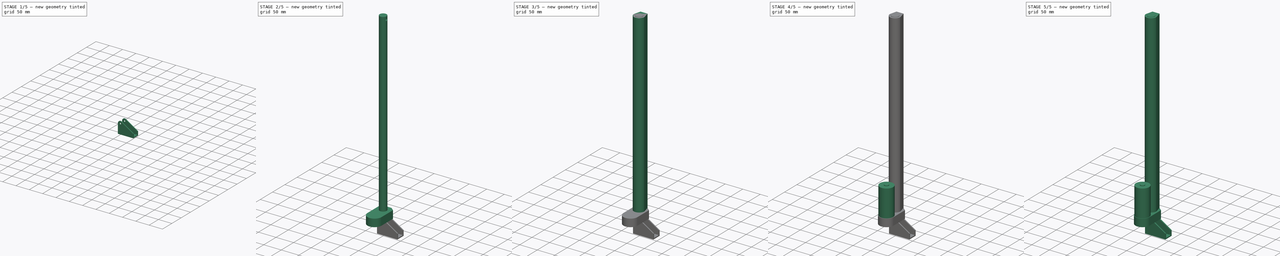
[diagram: build sequence overview — one tinted view per stage of 5, left to right]
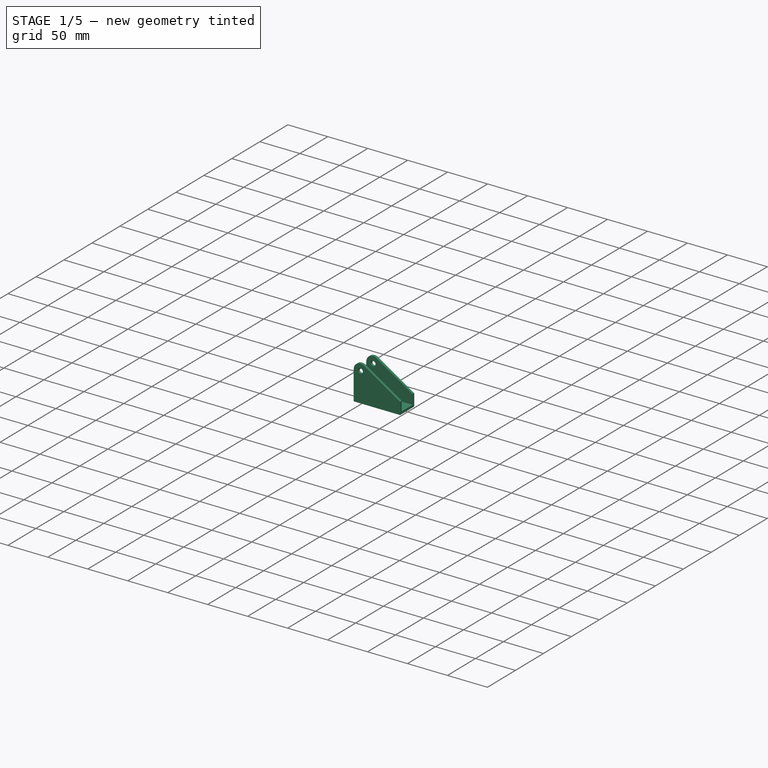
[diagram: stage 1 of 5 — iso view after this stage's code; geometry added in this stage tinted green]
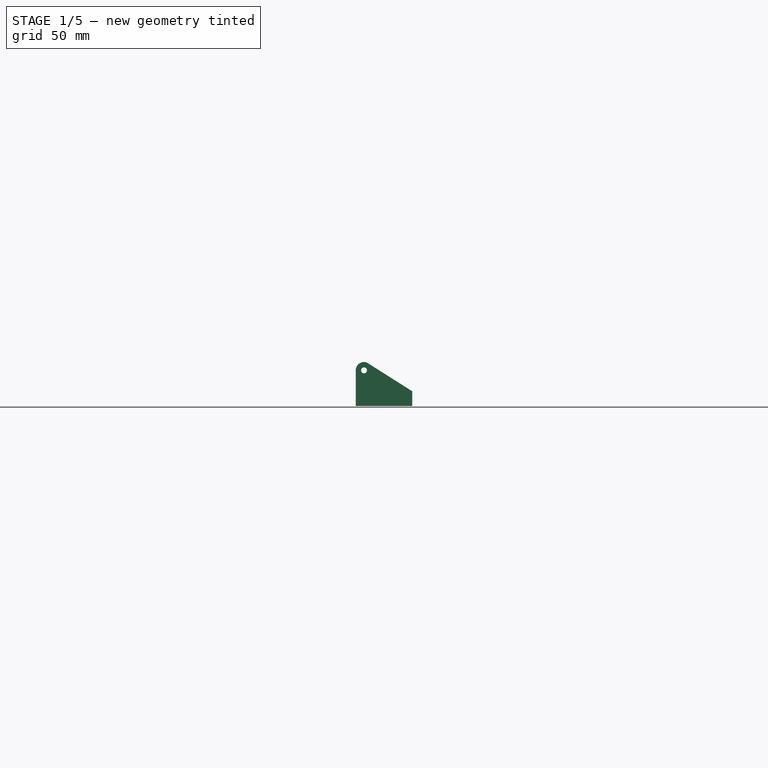
[diagram: stage 1 of 5 — front view after this stage's code; geometry added in this stage tinted green]
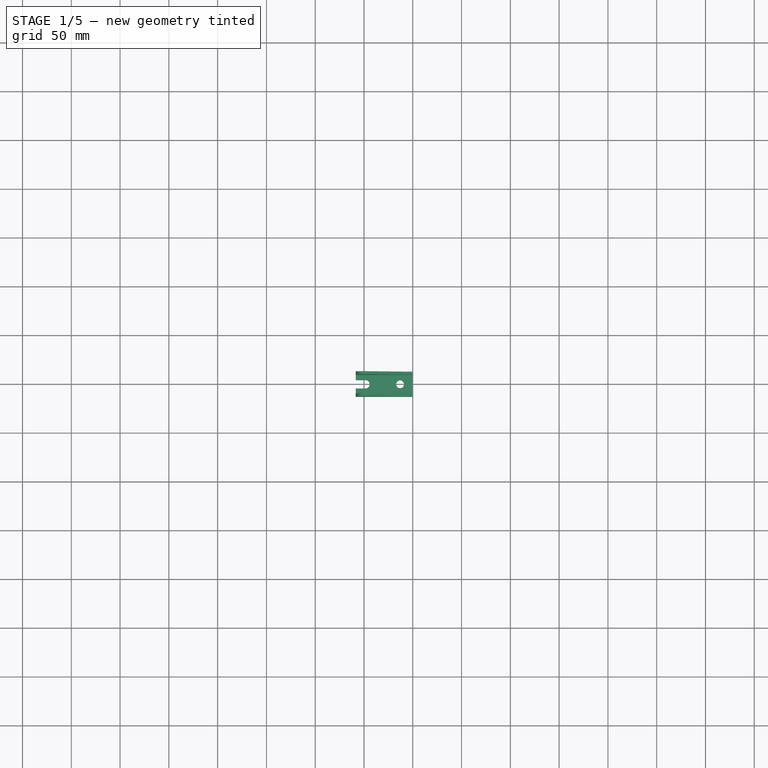
[diagram: stage 1 of 5 — top view after this stage's code; geometry added in this stage tinted green]
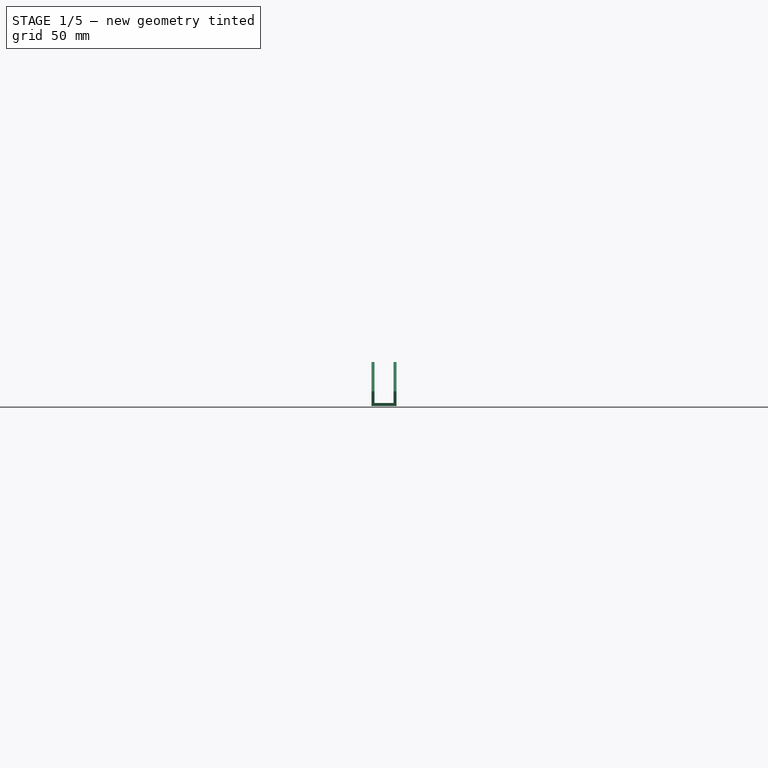
[diagram: stage 1 of 5 — right view after this stage's code; geometry added in this stage tinted green]
FCSTD DOCUMENT  (FreeCAD 0.19R18044 (Git))
Label: linear-actuator-400
License: Public Domain
LicenseURL: http://en.wikipedia.org/wiki/Public_domain
objects: Part::FeaturePython×21, App::FeaturePython×19, Sketcher::SketchObject×15, PartDesign::Pad×8, PartDesign::Pocket×6, PartDesign::Body×4, PartDesign::Hole×1
note: 66 computed .brp shape members not serialized (recipe doc carries the construction recipe); baked Part::Feature solids carry a one-line shape summary decoded from their .brp

FEATURE [PartDesign::Body] Body  label="actuator base"
  Group = -> [Sketch,Pad,Sketch001,Pad001,Sketch002,Hole,Sketch003,Pad002,Sketch004,Pocket,Sketch007,Pad004,Sketch008,Pad005]
  Origin = -> Origin
  SingleSolid = true
  Tip = -> Pad005
FEATURE [Sketcher::SketchObject] Sketch009
  MapMode = 5
  Placement = pos=(0,0,0) rot=(1,0,0;1.5708rad)
  Support = -> [XZ_Plane002]
  sketch-geometry (7):
    g0: LineSegment StartX=-8.5 StartY=1e-15 StartZ=0 EndX=-8.5 EndY=-36.5 EndZ=0
    g1: LineSegment StartX=-8.5 StartY=-36.5 StartZ=0 EndX=49.5 EndY=-36.5 EndZ=0
    g2: LineSegment StartX=49.5 StartY=-36.5 StartZ=0 EndX=49.5 EndY=-21.5 EndZ=0
    g3: LineSegment StartX=49.5 StartY=-21.5 StartZ=0 EndX=3.04099 EndY=7.9374 EndZ=0
    g4: ArcOfCircle CenterX=0 CenterY=0 CenterZ=0 NormalX=0 NormalY=0 NormalZ=1 AngleXU=0 Radius=8.5 StartAngle=1.20492 EndAngle=3.14159
    g5: Circle CenterX=0 CenterY=0 CenterZ=0 NormalX=0 NormalY=0 NormalZ=1 AngleXU=0 Radius=3
    g6: GeomPoint X=1.97567e-07 Y=8.5 Z=0
  constraints (19):
    c: Vertical(g0)
    c: Coincident(g0,g1)
    c: Horizontal(g1)
    c: Coincident(g1,g2)
    c: Vertical(g2)
    c: Coincident(g2,g3)
    c: Coincident(g4,g-1)
    c: Coincident(g4,g0)
    c: Coincident(g4,g3)
    c: Coincident(g5,g4)
    c: Distance(g1) = 58
    c: Distance(g0) = 36.5
    c: Distance(g2) = 15
    c: Diameter(g5) = 6
    c: DistanceX(g0,g4) = 8.5
    c: PointOnObject(g0,g-1)
    c: PointOnObject(g6,g4)
    c: DistanceY(g0,g6) = 45
    c: Distance(g3) = 55
FEATURE [PartDesign::Pad] Pad006
  ClaimChildren = false
  Length = 25.5
  Length2 = 100
  Midplane = true
  Placement = pos=(0,0,0) rot=(1,0,0;1.5708rad)
  Profile = -> Sketch009
  Type = 0
FEATURE [Sketcher::SketchObject] Sketch010
  ExternalGeometry = -> [Pad006]
  MapMode = 5
  Placement = pos=(-8.5,0,0) rot=(0.707107,0,-0.707107;3.14159rad)
  Support = -> [Pad006]
  sketch-geometry (4):
    g0: LineSegment StartX=-11.5 StartY=9.75 StartZ=0 EndX=33.5 EndY=9.75 EndZ=0
    g1: LineSegment StartX=33.5 StartY=9.75 StartZ=0 EndX=33.5 EndY=-9.75 EndZ=0
    g2: LineSegment StartX=33.5 StartY=-9.75 StartZ=0 EndX=-11.5 EndY=-9.75 EndZ=0
    g3: LineSegment StartX=-11.5 StartY=-9.75 StartZ=0 EndX=-11.5 EndY=9.75 EndZ=0
  constraints (11):
    c: Coincident(g0,g1)
    c: Coincident(g1,g2)
    c: Coincident(g2,g3)
    c: Coincident(g3,g0)
    c: Horizontal(g0)
    c: Horizontal(g2)
    c: Vertical(g3)
    c: Symmetric(g0,g1,g-1)
    c: DistanceX(g0,g-3) = 3
    c: DistanceY(g0,g-3) = 3
    c: Distance(g0) = 45
FEATURE [PartDesign::Pocket] Pocket002
  BaseFeature = -> Pad006
  ClaimChildren = false
  Length = 5
  Length2 = 100
  Placement = pos=(0,0,0) rot=(1,0,0;1.5708rad)
  Profile = -> Sketch010
  Type = 1
FEATURE [Sketcher::SketchObject] Sketch011
  ExternalGeometry = -> [Pocket002]
  MapMode = 5
  Placement = pos=(7.4e-15,0,-33.5) rot=(0,0,1;3.14159rad)
  Support = -> [Pocket002]
  sketch-geometry (5):
    g0: Circle CenterX=-37 CenterY=0 CenterZ=0 NormalX=0 NormalY=0 NormalZ=1 AngleXU=0 Radius=4
    g1: LineSegment StartX=-1.5 StartY=4.25 StartZ=0 EndX=8.5 EndY=4.25 EndZ=0
    g2: LineSegment StartX=-1.5 StartY=-4.25 StartZ=0 EndX=8.5 EndY=-4.25 EndZ=0
    g3: ArcOfCircle CenterX=-1.5 CenterY=4e-16 CenterZ=0 NormalX=0 NormalY=0 NormalZ=1 AngleXU=0 Radius=4.25 StartAngle=1.5708 EndAngle=4.71239
    g4: LineSegment StartX=8.5 StartY=4.25 StartZ=0 EndX=8.5 EndY=-4.25 EndZ=0
  constraints (15):
    c: PointOnObject(g0,g-1)
    c: PointOnObject(g1,g-3)
    c: Horizontal(g1)
    c: PointOnObject(g2,g-3)
    c: Horizontal(g2)
    c: Symmetric(g1,g2,g-1)
    c: Coincident(g3,g2)
    c: Coincident(g3,g1)
    c: DistanceX(g3,g-3) = 10
    c: Distance(g1) = 10
    c: Diameter(g3) = 8.5
    c: Diameter(g0) = 8
    c: DistanceX(g0,g-3) = 45.5
    c: Coincident(g4,g1)
    c: Coincident(g4,g2)
FEATURE [PartDesign::Pocket] Pocket003
  BaseFeature = -> Pocket002
  ClaimChildren = false
  Length = 5
  Length2 = 100
  Placement = pos=(0,0,0) rot=(1,0,0;1.5708rad)
  Profile = -> Sketch011
  Type = 1
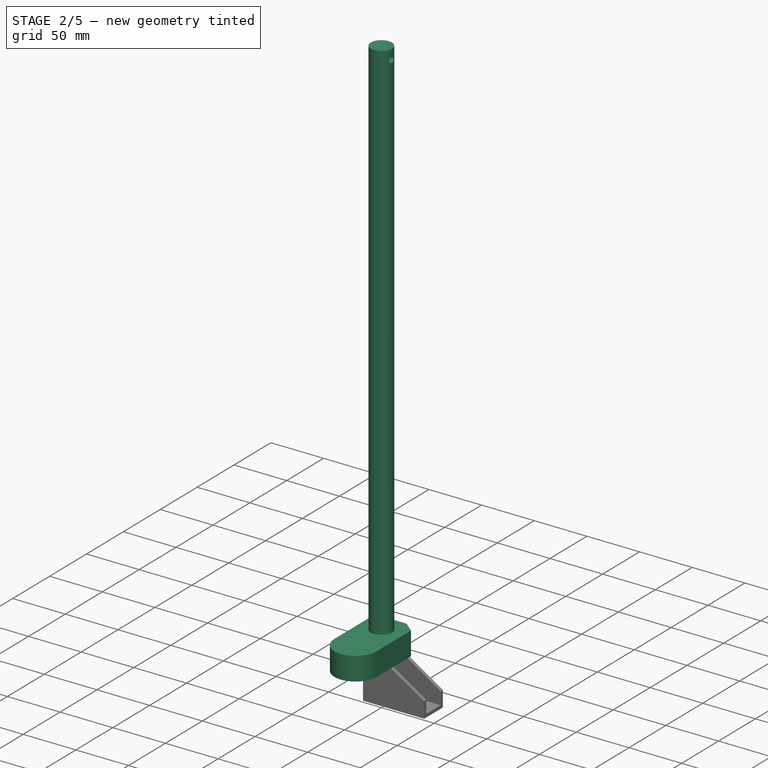
[diagram: stage 2 of 5 — iso view after this stage's code; geometry added in this stage tinted green]
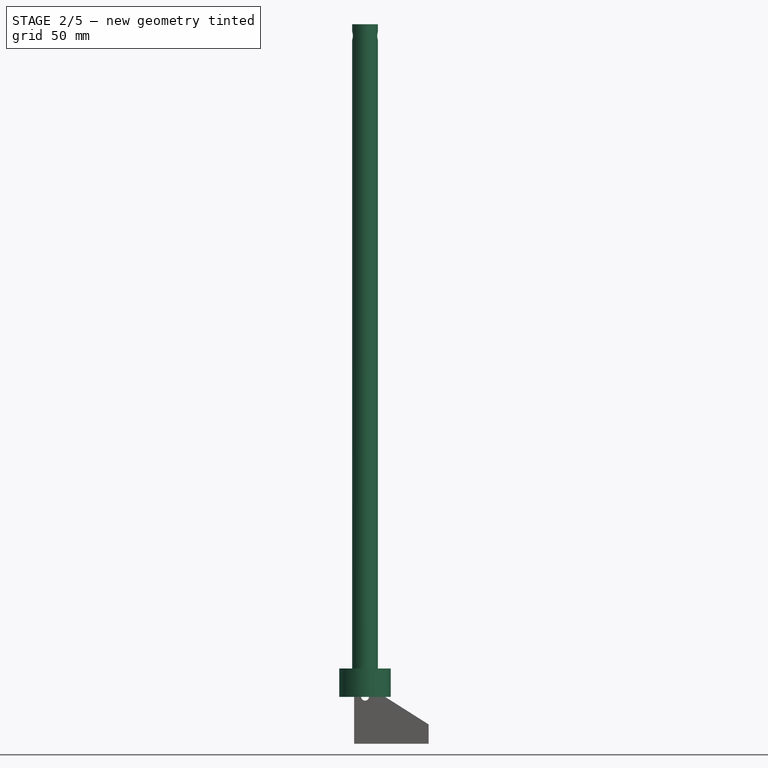
[diagram: stage 2 of 5 — front view after this stage's code; geometry added in this stage tinted green]
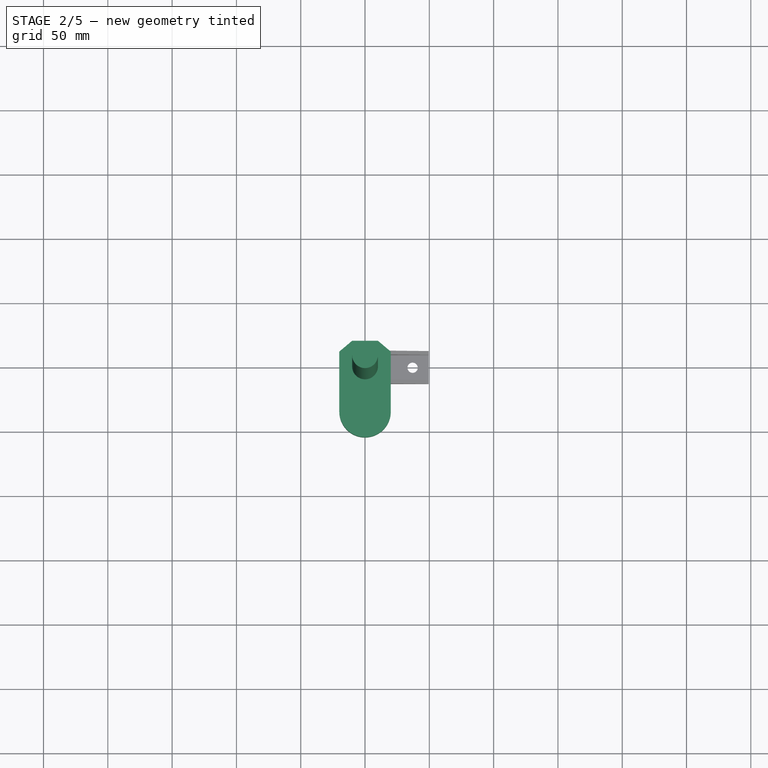
[diagram: stage 2 of 5 — top view after this stage's code; geometry added in this stage tinted green]
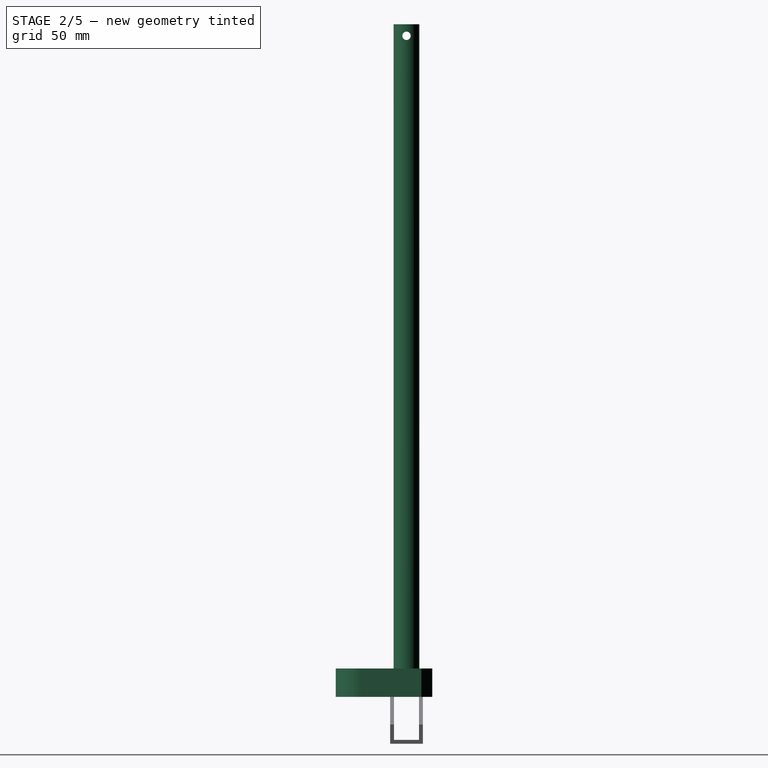
[diagram: stage 2 of 5 — right view after this stage's code; geometry added in this stage tinted green]
FEATURE [Sketcher::SketchObject] Sketch
  MapMode = 5
  Support = -> [XY_Plane]
  sketch-geometry (6):
    g0: LineSegment StartX=-10 StartY=20 StartZ=0 EndX=-20 EndY=11.609 EndZ=0
    g1: LineSegment StartX=-20 StartY=11.609 StartZ=0 EndX=-20 EndY=-35 EndZ=0
    g2: LineSegment StartX=20 StartY=-35 StartZ=0 EndX=20 EndY=11.609 EndZ=0
    g3: LineSegment StartX=20 StartY=11.609 StartZ=0 EndX=10 EndY=20 EndZ=0
    g4: LineSegment StartX=10 StartY=20 StartZ=0 EndX=-10 EndY=20 EndZ=0
    g5: ArcOfCircle CenterX=-4e-16 CenterY=-35 CenterZ=0 NormalX=0 NormalY=0 NormalZ=1 AngleXU=0 Radius=20 StartAngle=3.14159 EndAngle=6.28319
  constraints (18):
    c: Coincident(g0,g1)
    c: Vertical(g1)
    c: Vertical(g2)
    c: Coincident(g2,g3)
    c: Coincident(g3,g4)
    c: Coincident(g4,g0)
    c: Horizontal(g4)
    c: Symmetric(g0,g2,g-2)
    c: Equal(g0,g3)
    c: Coincident(g5,g1)
    c: Coincident(g5,g2)
    c: Radius(g5) = 20
    c: Horizontal(g5,g2)
    c: Horizontal(g2,g1)
    c: DistanceY(g2,g3) = 55
    c: DistanceY(g-1,g3) = 20
    c: Distance(g4) = 20
    c: Angle(g1,g0) = 2.26893
FEATURE [PartDesign::Pad] Pad  label="base"
  ClaimChildren = false
  Length = 22
  Length2 = 100
  Profile = -> Sketch
  Type = 0
FEATURE [Sketcher::SketchObject] Sketch005
  MapMode = 5
  Support = -> [XY_Plane001]
  sketch-geometry (1):
    g0: Circle CenterX=0 CenterY=0 CenterZ=0 NormalX=0 NormalY=0 NormalZ=1 AngleXU=0 Radius=10
  constraints (2):
    c: Coincident(g0,g-1)
    c: Diameter(g0) = 20
FEATURE [PartDesign::Pad] Pad003
  ClaimChildren = false
  Length = 523
  Length2 = 100
  Profile = -> Sketch005
  Type = 0
FEATURE [Sketcher::SketchObject] Sketch006
  ExternalGeometry = -> [Pad003]
  MapMode = 5
  Placement = pos=(0,0,0) rot=(0.57735,0.57735,0.57735;2.0944rad)
  Support = -> [YZ_Plane001]
  sketch-geometry (1):
    g0: Circle CenterX=-1.11e-13 CenterY=514 CenterZ=0 NormalX=0 NormalY=0 NormalZ=1 AngleXU=0 Radius=3.25
  constraints (3):
    c: DistanceY(g0,g-3) = 9
    c: PointOnObject(g0,g-3)
    c: Diameter(g0) = 6.5
FEATURE [PartDesign::Pocket] Pocket001
  BaseFeature = -> Pad003
  ClaimChildren = false
  Length = 5
  Length2 = 100
  Midplane = true
  Profile = -> Sketch006
  Type = 1
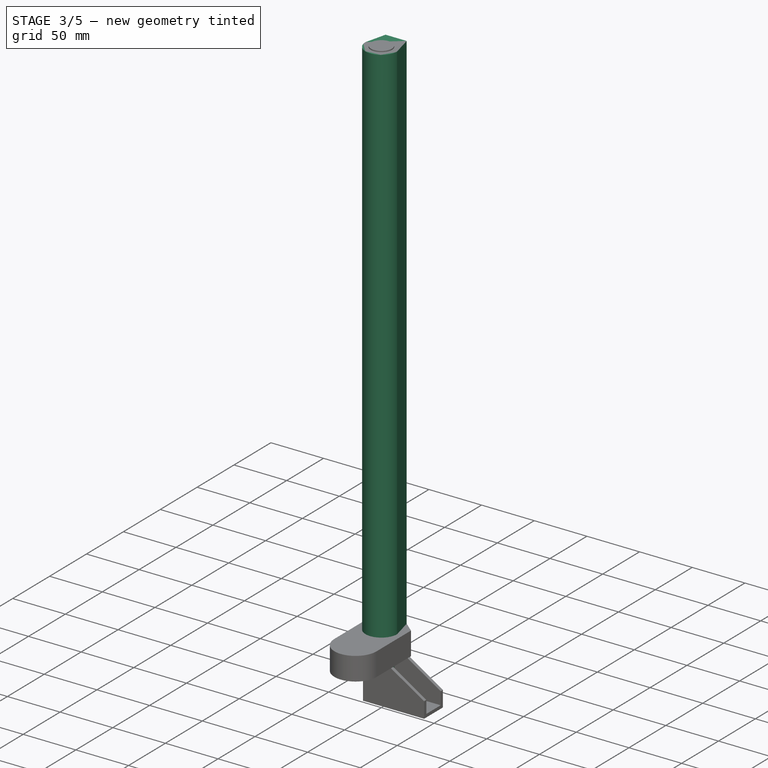
[diagram: stage 3 of 5 — iso view after this stage's code; geometry added in this stage tinted green]
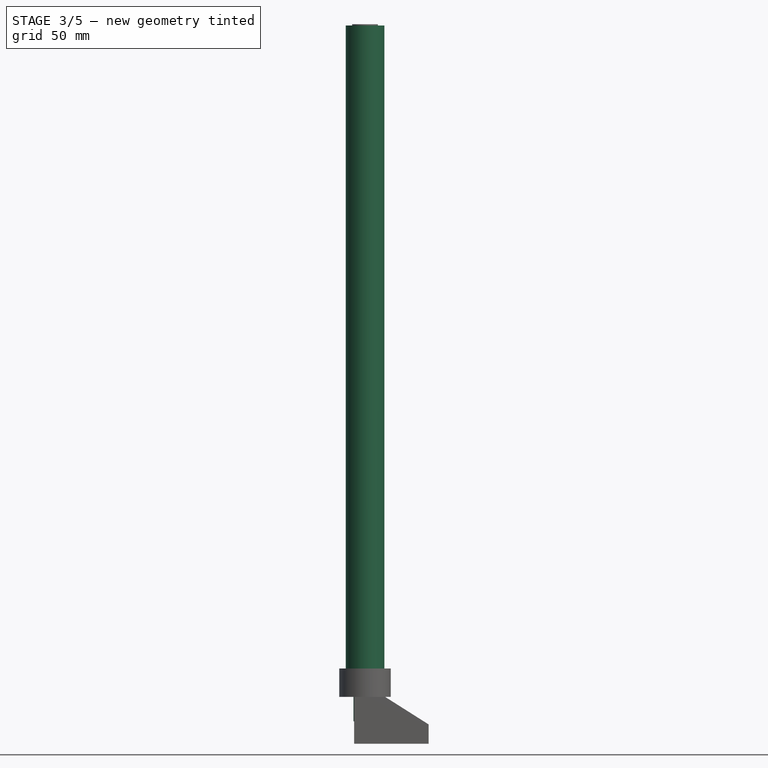
[diagram: stage 3 of 5 — front view after this stage's code; geometry added in this stage tinted green]
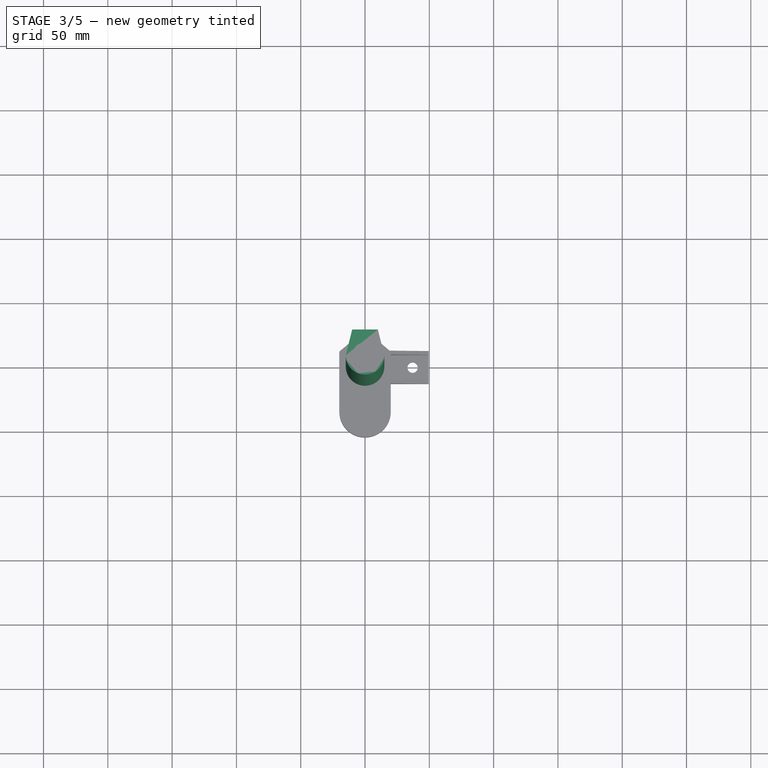
[diagram: stage 3 of 5 — top view after this stage's code; geometry added in this stage tinted green]
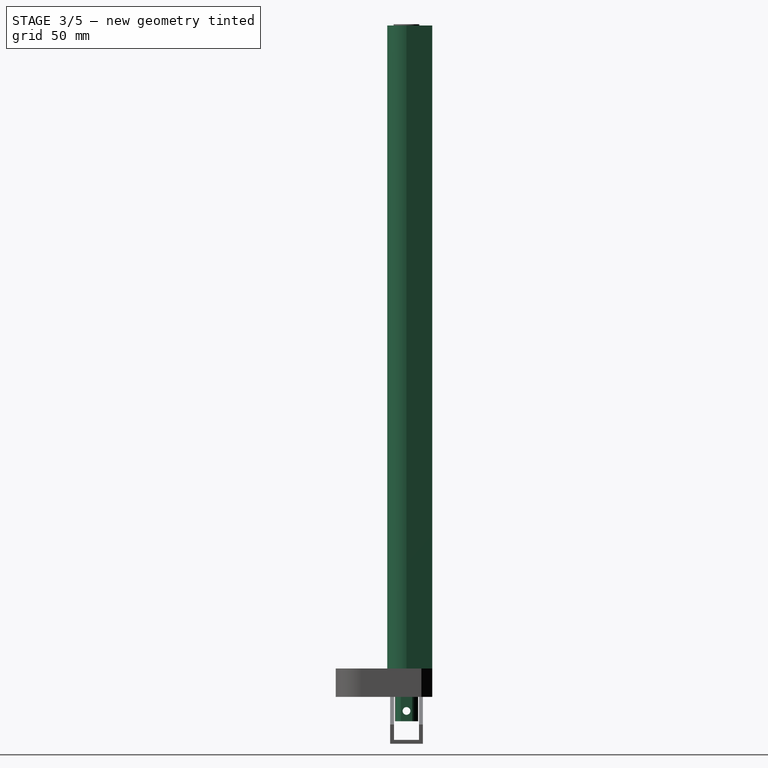
[diagram: stage 3 of 5 — right view after this stage's code; geometry added in this stage tinted green]
FEATURE [Sketcher::SketchObject] Sketch001
  MapMode = 5
  Placement = pos=(0,0,0) rot=(1,0,0;3.14159rad)
  Support = -> [Pad]
  sketch-geometry (9):
    g0: LineSegment StartX=-4.3589 StartY=9 StartZ=0 EndX=4.3589 EndY=9 EndZ=0
    g1: LineSegment StartX=9 StartY=4.3589 StartZ=0 EndX=9 EndY=-4.3589 EndZ=0
    g2: LineSegment StartX=4.3589 StartY=-9 StartZ=0 EndX=-4.3589 EndY=-9 EndZ=0
    g3: LineSegment StartX=-9 StartY=-4.3589 StartZ=0 EndX=-9 EndY=4.3589 EndZ=0
    g4: Circle [constr] CenterX=0 CenterY=0 CenterZ=0 NormalX=0 NormalY=0 NormalZ=1 AngleXU=0 Radius=10
    g5: ArcOfCircle CenterX=0 CenterY=0 CenterZ=0 NormalX=0 NormalY=0 NormalZ=1 AngleXU=0 Radius=10 StartAngle=2.02182 EndAngle=2.69057
    g6: ArcOfCircle CenterX=0 CenterY=0 CenterZ=0 NormalX=0 NormalY=0 NormalZ=1 AngleXU=0 Radius=10 StartAngle=0.451027 EndAngle=1.11977
    g7: ArcOfCircle CenterX=0 CenterY=0 CenterZ=0 NormalX=0 NormalY=0 NormalZ=1 AngleXU=0 Radius=10 StartAngle=5.16342 EndAngle=5.83216
    g8: ArcOfCircle CenterX=0 CenterY=0 CenterZ=0 NormalX=0 NormalY=0 NormalZ=1 AngleXU=0 Radius=10 StartAngle=3.59262 EndAngle=4.26136
  constraints (25):
    c: Horizontal(g0)
    c: Vertical(g1)
    c: Vertical(g3)
    c: Coincident(g4,g-1)
    c: Equal(g0,g1)
    c: Radius(g4) = 10
    c: Coincident(g5,g3)
    c: Coincident(g0,g5)
    c: Coincident(g-1,g5)
    c: Radius(g5) = 10
    c: Coincident(g2,g8)
    c: Coincident(g2,g7)
    c: Coincident(g1,g7)
    c: Coincident(g1,g6)
    c: Coincident(g0,g6)
    c: Coincident(g8,g5)
    c: Coincident(g8,g3)
    c: Coincident(g7,g5)
    c: Coincident(g6,g5)
    c: Radius(g6) = 10
    c: Radius(g7) = 10
    c: DistanceY(g2,g0) = 18
    c: DistanceX(g3,g1) = 18
    c: Symmetric(g2,g2,g-2)
    c: Vertical(g0,g2)
FEATURE [PartDesign::Pad] Pad001  label="foot"
  BaseFeature = -> Pad
  ClaimChildren = false
  Length = 19
  Length2 = 100
  Profile = -> Sketch001
  Type = 0
FEATURE [Sketcher::SketchObject] Sketch002
  MapMode = 5
  Placement = pos=(-9,0,0) rot=(0.57735,-0.57735,-0.57735;2.0944rad)
  Support = -> [Pad001]
  sketch-geometry (1):
    g0: Circle CenterX=0 CenterY=-11 CenterZ=0 NormalX=0 NormalY=0 NormalZ=1 AngleXU=0 Radius=3.25
  constraints (3):
    c: PointOnObject(g0,g-2)
    c: Diameter(g0) = 6.5
    c: DistanceY(g0,g-1) = 11
FEATURE [PartDesign::Hole] Hole
  BaseFeature = -> Pad001
  ClaimChildren = false
  Depth = 25
  DepthType = 1
  Diameter = 6
  DrillPoint = 1
  DrillPointAngle = 118
  HoleCutCountersinkAngle = 90
  HoleCutDepth = 0
  HoleCutDiameter = 0
  HoleCutType = 0
  ModelActualThread = false
  Profile = -> Sketch002
  Tapered = false
  TaperedAngle = 90
  ThreadAngle = 0
  ThreadClass = 0
  ThreadCutOffInner = 0
  ThreadCutOffOuter = 0
  ThreadDirection = 0
  ThreadFit = 0
  ThreadPitch = 0
  ThreadSize = 0
  ThreadType = 0
  Threaded = false
FEATURE [Sketcher::SketchObject] Sketch003
  ExternalGeometry = -> [Hole]
  MapMode = 5
  Placement = pos=(0,0,22) rot=(0,0,1;0rad)
  Support = -> [Hole]
  sketch-geometry (4):
    g0: LineSegment StartX=-15 StartY=1.8e-15 StartZ=0 EndX=-10 EndY=20 EndZ=0
    g1: LineSegment StartX=-10 StartY=20 StartZ=0 EndX=10 EndY=20 EndZ=0
    g2: LineSegment StartX=10 StartY=20 StartZ=0 EndX=15 EndY=-3.6e-15 EndZ=0
    g3: ArcOfCircle CenterX=0 CenterY=0 CenterZ=0 NormalX=0 NormalY=0 NormalZ=1 AngleXU=0 Radius=15 StartAngle=3.14159 EndAngle=6.28319
  constraints (12):
    c: Coincident(g0,g1)
    c: Horizontal(g1)
    c: Coincident(g1,g2)
    c: Coincident(g3,g-1)
    c: Coincident(g3,g0)
    c: Coincident(g3,g2)
    c: Diameter(g3) = 30
    c: PointOnObject(g0,g-3)
    c: DistanceX(g1,g1) = 20
    c: Equal(g2,g0)
    c: Symmetric(g2,g0,g-2)
    c: PointOnObject(g2,g-1)
FEATURE [PartDesign::Pad] Pad002
  BaseFeature = -> Hole
  ClaimChildren = false
  Length = 500
  Length2 = 100
  Profile = -> Sketch003
  Type = 0
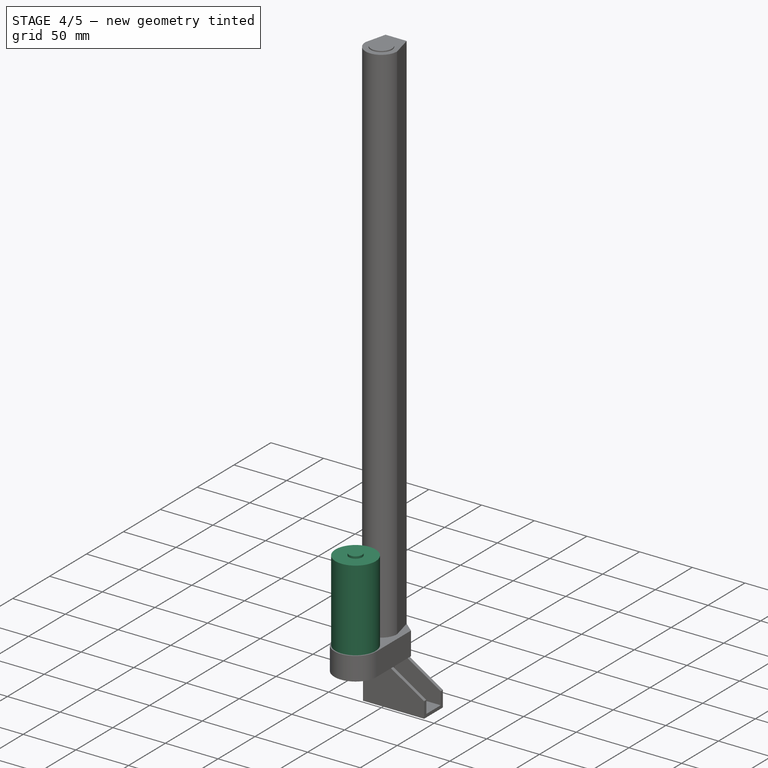
[diagram: stage 4 of 5 — iso view after this stage's code; geometry added in this stage tinted green]
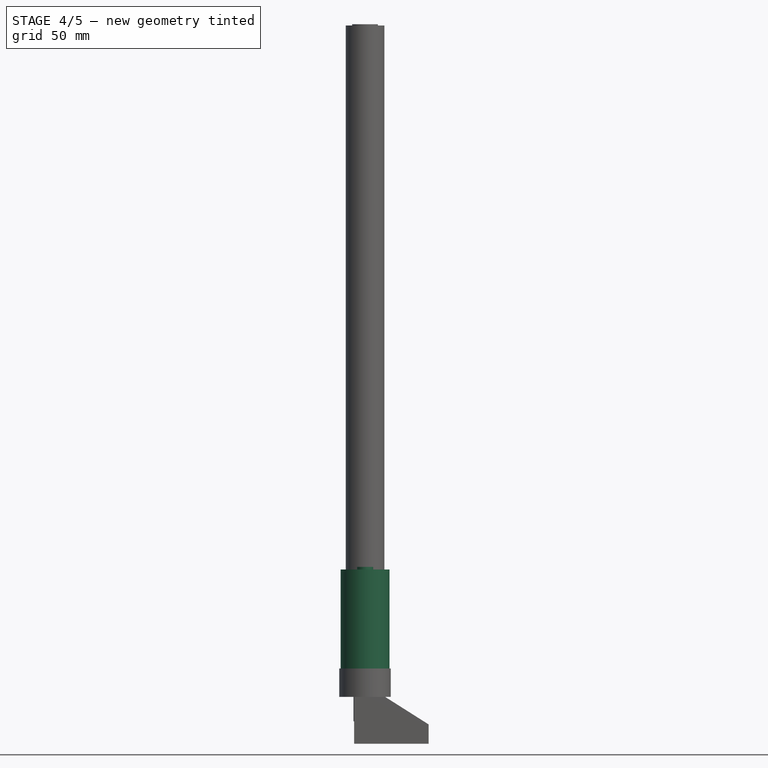
[diagram: stage 4 of 5 — front view after this stage's code; geometry added in this stage tinted green]
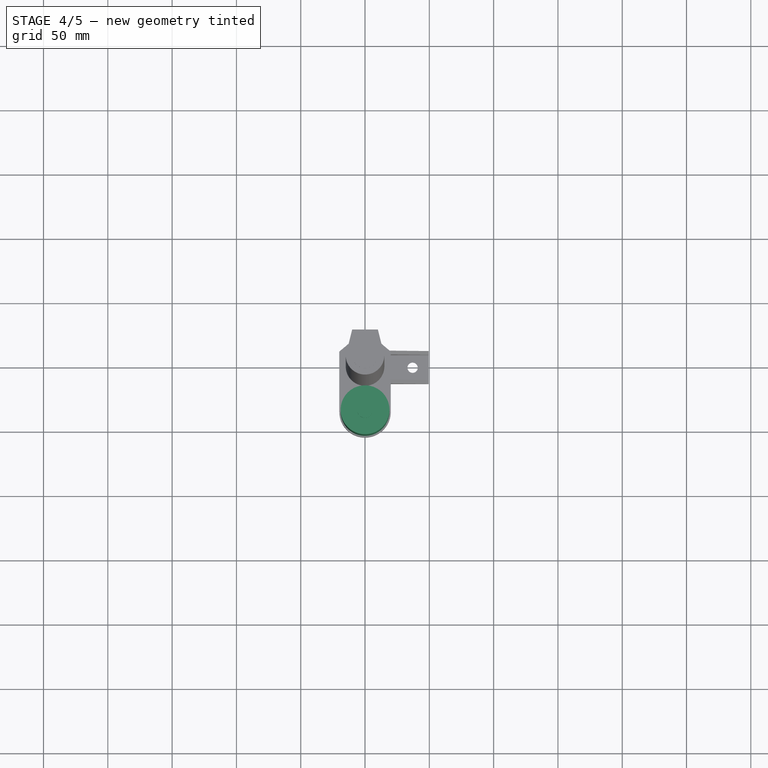
[diagram: stage 4 of 5 — top view after this stage's code; geometry added in this stage tinted green]
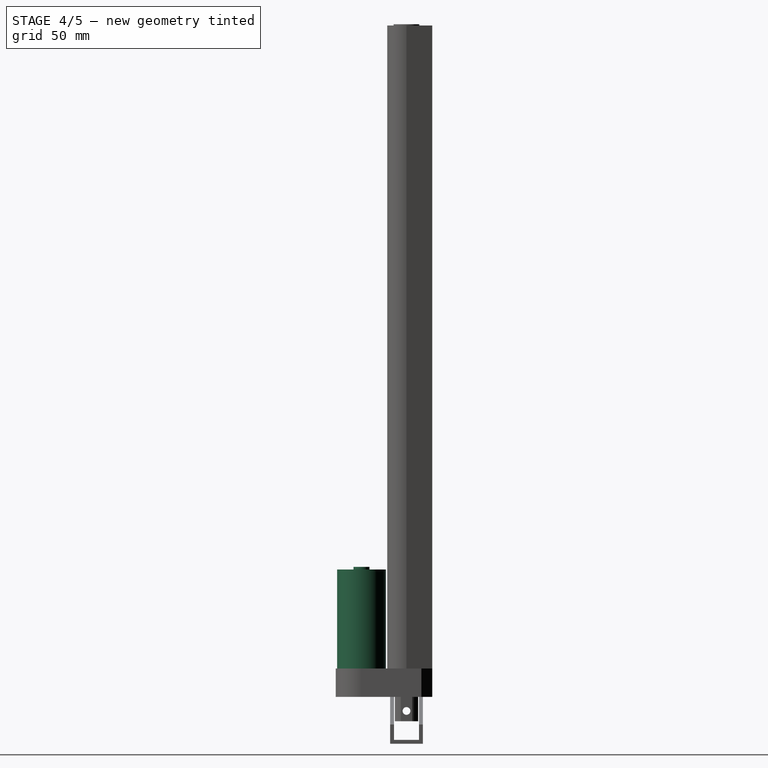
[diagram: stage 4 of 5 — right view after this stage's code; geometry added in this stage tinted green]
FEATURE [Sketcher::SketchObject] Sketch004
  MapMode = 5
  Placement = pos=(0,0,522) rot=(0,0,1;0rad)
  Support = -> [Pad002]
  sketch-geometry (1):
    g0: Circle CenterX=0 CenterY=0 CenterZ=0 NormalX=0 NormalY=0 NormalZ=1 AngleXU=0 Radius=10
  constraints (2):
    c: Coincident(g0,g-1)
    c: Diameter(g0) = 20
FEATURE [PartDesign::Pocket] Pocket
  BaseFeature = -> Pad002
  ClaimChildren = false
  Length = 500
  Length2 = 100
  Profile = -> Sketch004
  Type = 0
FEATURE [PartDesign::Body] Body001  label="piston"
  Group = -> [Sketch005,Pad003,Sketch006,Pocket001]
  Origin = -> Origin001
  Placement = pos=(0,0,22) rot=(0,0,1;0rad)
  SingleSolid = true
  Tip = -> Pocket001
FEATURE [Sketcher::SketchObject] Sketch007
  MapMode = 5
  Placement = pos=(0,0,22) rot=(0,0,1;0rad)
  Support = -> [Pocket]
  sketch-geometry (1):
    g0: Circle CenterX=0 CenterY=-35 CenterZ=0 NormalX=0 NormalY=0 NormalZ=1 AngleXU=0 Radius=19
  constraints (3):
    c: PointOnObject(g0,g-2)
    c: Diameter(g0) = 38
    c: DistanceY(g0,g-1) = 35
FEATURE [PartDesign::Pad] Pad004
  BaseFeature = -> Pocket
  ClaimChildren = false
  Length = 77
  Length2 = 100
  Profile = -> Sketch007
  Type = 0
FEATURE [Sketcher::SketchObject] Sketch008
  MapMode = 5
  Placement = pos=(0,0,99) rot=(0,0,1;0rad)
  Support = -> [Pad004]
  sketch-geometry (1):
    g0: Circle CenterX=0 CenterY=-35 CenterZ=0 NormalX=0 NormalY=0 NormalZ=1 AngleXU=0 Radius=6.25
  constraints (3):
    c: PointOnObject(g0,g-2)
    c: DistanceY(g0,g-1) = 35
    c: Diameter(g0) = 12.5
FEATURE [PartDesign::Pad] Pad005
  BaseFeature = -> Pad004
  ClaimChildren = false
  Length = 2
  Length2 = 100
  Profile = -> Sketch008
  Type = 0
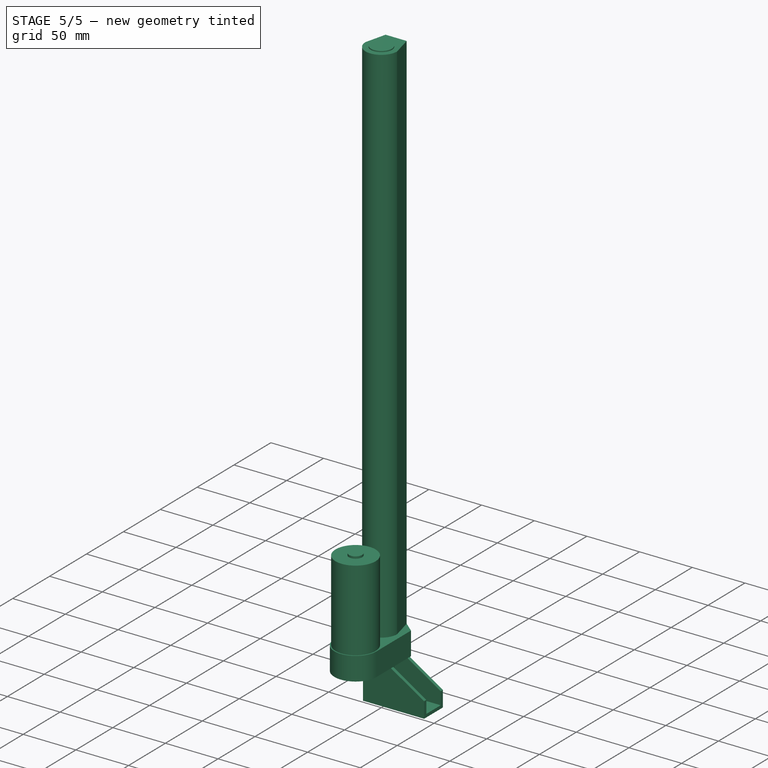
[diagram: stage 5 of 5 — iso view after this stage's code; geometry added in this stage tinted green]
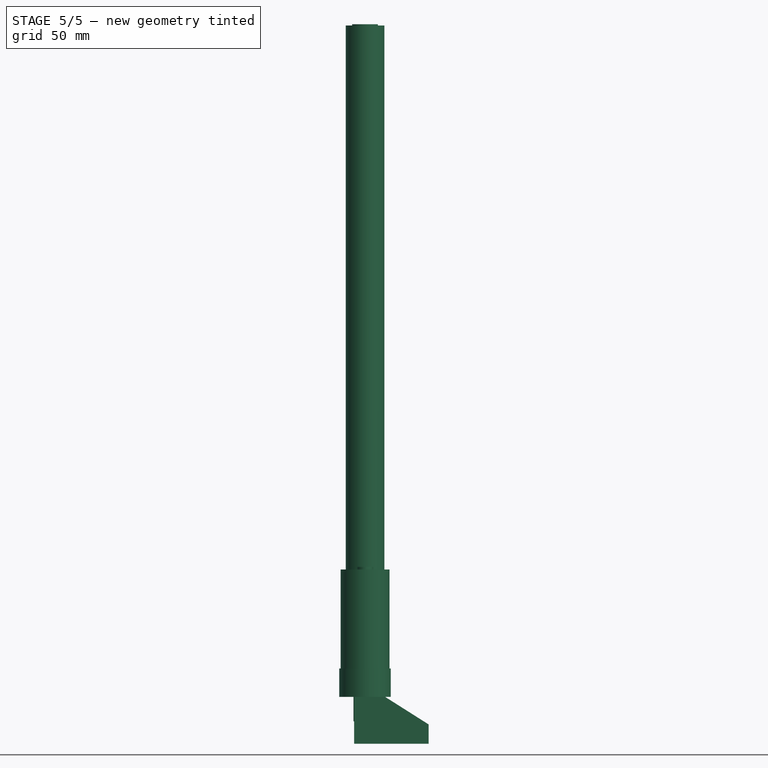
[diagram: stage 5 of 5 — front view after this stage's code; geometry added in this stage tinted green]
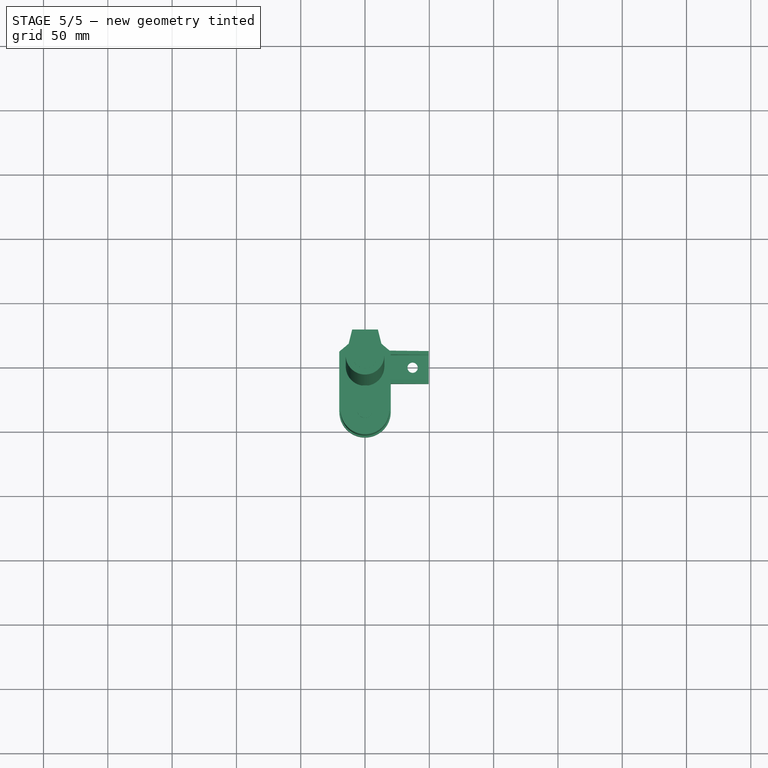
[diagram: stage 5 of 5 — top view after this stage's code; geometry added in this stage tinted green]
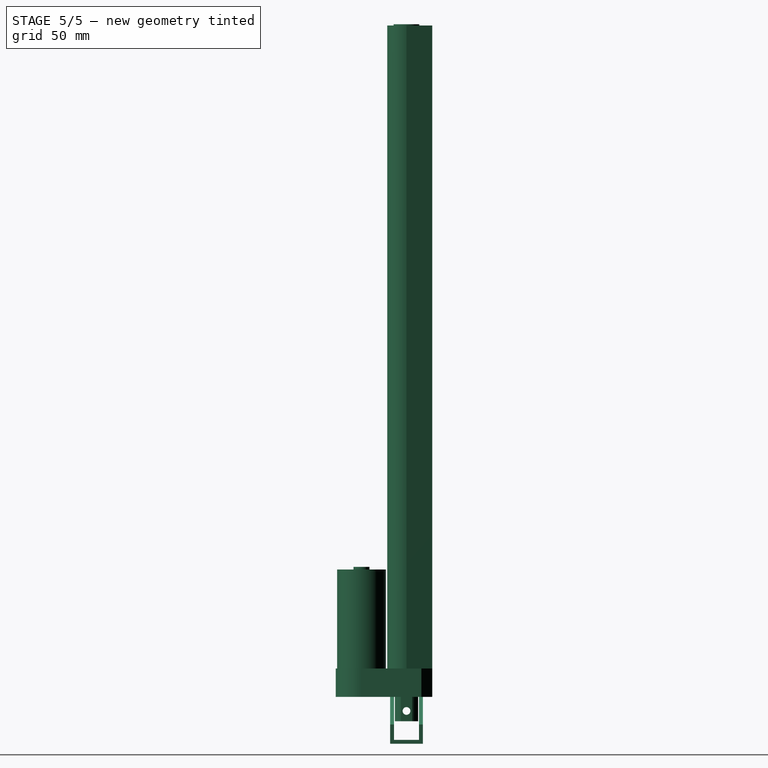
[diagram: stage 5 of 5 — right view after this stage's code; geometry added in this stage tinted green]
FEATURE [PartDesign::Body] Body002  label="bracket bottom"
  Group = -> [Sketch009,Pad006,Sketch010,Pocket002,Sketch011,Pocket003]
  Origin = -> Origin002
  Placement = pos=(0,0,-11) rot=(0,0,1;4.71239rad)
  SingleSolid = true
  Tip = -> Pocket003
FEATURE [Sketcher::SketchObject] Sketch012
  MapMode = 5
  Placement = pos=(0,0,0) rot=(1,0,0;1.5708rad)
  Support = -> [XZ_Plane003]
  sketch-geometry (7):
    g0: LineSegment StartX=-8.5 StartY=1e-15 StartZ=0 EndX=-8.5 EndY=-36.5 EndZ=0
    g1: LineSegment StartX=-8.5 StartY=-36.5 StartZ=0 EndX=49.5 EndY=-36.5 EndZ=0
    g2: LineSegment StartX=49.5 StartY=-36.5 StartZ=0 EndX=49.5 EndY=-21.5 EndZ=0
    g3: LineSegment StartX=49.5 StartY=-21.5 StartZ=0 EndX=3.04099 EndY=7.9374 EndZ=0
    g4: ArcOfCircle CenterX=0 CenterY=0 CenterZ=0 NormalX=0 NormalY=0 NormalZ=1 AngleXU=0 Radius=8.5 StartAngle=1.20492 EndAngle=3.14159
    g5: Circle CenterX=0 CenterY=0 CenterZ=0 NormalX=0 NormalY=0 NormalZ=1 AngleXU=0 Radius=3
    g6: GeomPoint X=2.60784e-05 Y=8.5 Z=0
  constraints (19):
    c: Vertical(g0)
    c: Coincident(g0,g1)
    c: Horizontal(g1)
    c: Coincident(g1,g2)
    c: Vertical(g2)
    c: Coincident(g2,g3)
    c: Coincident(g4,g-1)
    c: Coincident(g4,g0)
    c: Coincident(g4,g3)
    c: Coincident(g5,g4)
    c: Distance(g1) = 58
    c: Distance(g0) = 36.5
    c: Distance(g2) = 15
    c: Diameter(g5) = 6
    c: DistanceX(g0,g4) = 8.5
    c: PointOnObject(g0,g-1)
    c: PointOnObject(g6,g4)
    c: DistanceY(g0,g6) = 45
    c: Distance(g3) = 55
FEATURE [PartDesign::Pad] Pad007
  ClaimChildren = false
  Length = 25.5
  Length2 = 100
  Midplane = true
  Placement = pos=(0,0,0) rot=(1,0,0;1.5708rad)
  Profile = -> Sketch012
  Type = 0
FEATURE [Sketcher::SketchObject] Sketch013
  ExternalGeometry = -> [Pad007]
  MapMode = 5
  Placement = pos=(-8.5,0,0) rot=(0.707107,0,-0.707107;3.14159rad)
  Support = -> [Pad007]
  sketch-geometry (4):
    g0: LineSegment StartX=-11.5 StartY=9.75 StartZ=0 EndX=33.5 EndY=9.75 EndZ=0
    g1: LineSegment StartX=33.5 StartY=9.75 StartZ=0 EndX=33.5 EndY=-9.75 EndZ=0
    g2: LineSegment StartX=33.5 StartY=-9.75 StartZ=0 EndX=-11.5 EndY=-9.75 EndZ=0
    g3: LineSegment StartX=-11.5 StartY=-9.75 StartZ=0 EndX=-11.5 EndY=9.75 EndZ=0
  constraints (11):
    c: Coincident(g0,g1)
    c: Coincident(g1,g2)
    c: Coincident(g2,g3)
    c: Coincident(g3,g0)
    c: Horizontal(g0)
    c: Horizontal(g2)
    c: Vertical(g3)
    c: Symmetric(g0,g1,g-1)
    c: DistanceX(g0,g-3) = 3
    c: DistanceY(g0,g-3) = 3
    c: Distance(g0) = 45
FEATURE [PartDesign::Pocket] Pocket004
  BaseFeature = -> Pad007
  ClaimChildren = false
  Length = 5
  Length2 = 100
  Placement = pos=(0,0,0) rot=(1,0,0;1.5708rad)
  Profile = -> Sketch013
  Type = 1
FEATURE [Sketcher::SketchObject] Sketch014
  ExternalGeometry = -> [Pocket004]
  MapMode = 5
  Placement = pos=(7.4e-15,0,-33.5) rot=(0,0,1;3.14159rad)
  Support = -> [Pocket004]
  sketch-geometry (5):
    g0: Circle CenterX=-37 CenterY=0 CenterZ=0 NormalX=0 NormalY=0 NormalZ=1 AngleXU=0 Radius=4
    g1: LineSegment StartX=-1.5 StartY=4.25 StartZ=0 EndX=8.5 EndY=4.25 EndZ=0
    g2: LineSegment StartX=-1.5 StartY=-4.25 StartZ=0 EndX=8.5 EndY=-4.25 EndZ=0
    g3: ArcOfCircle CenterX=-1.5 CenterY=4e-16 CenterZ=0 NormalX=0 NormalY=0 NormalZ=1 AngleXU=0 Radius=4.25 StartAngle=1.5708 EndAngle=4.71239
    g4: LineSegment StartX=8.5 StartY=4.25 StartZ=0 EndX=8.5 EndY=-4.25 EndZ=0
  constraints (15):
    c: PointOnObject(g0,g-1)
    c: PointOnObject(g1,g-3)
    c: Horizontal(g1)
    c: PointOnObject(g2,g-3)
    c: Horizontal(g2)
    c: Symmetric(g1,g2,g-1)
    c: Coincident(g3,g2)
    c: Coincident(g3,g1)
    c: DistanceX(g3,g-3) = 10
    c: Distance(g1) = 10
    c: Diameter(g3) = 8.5
    c: Diameter(g0) = 8
    c: DistanceX(g0,g-3) = 45.5
    c: Coincident(g4,g1)
    c: Coincident(g4,g2)
FEATURE [PartDesign::Pocket] Pocket005
  BaseFeature = -> Pocket004
  ClaimChildren = false
  Length = 5
  Length2 = 100
  Placement = pos=(0,0,0) rot=(1,0,0;1.5708rad)
  Profile = -> Sketch014
  Type = 1
FEATURE [PartDesign::Body] Body003  label="bracket top"
  Group = -> [Sketch012,Pad007,Sketch013,Pocket004,Sketch014,Pocket005]
  Origin = -> Origin003
  Placement = pos=(2e-15,0,536) rot=(-0.707107,0.707107,0;3.14159rad)
  SingleSolid = true
  Tip = -> Pocket005
FEATURE [App::FeaturePython] Constraints  # WARN: FeaturePython — macro-defined, semantics opaque (R4)
  GroupMode = 1
  _Version = 1
FEATURE [Part::FeaturePython] Parts  label="Parts_Bracket"  # WARN: FeaturePython — macro-defined, semantics opaque (R4)
  Group = -> [Body002]
  GroupMode = 0
FEATURE [App::FeaturePython] Constraints002  # WARN: FeaturePython — macro-defined, semantics opaque (R4)
  GroupMode = 1
  _Version = 1
FEATURE [Part::FeaturePython] Parts002  label="Parts_Piston"  # WARN: FeaturePython — macro-defined, semantics opaque (R4)
  Group = -> [Body001]
  GroupMode = 0
FEATURE [App::FeaturePython] Constraints003  # WARN: FeaturePython — macro-defined, semantics opaque (R4)
  GroupMode = 1
  _Version = 1
FEATURE [Part::FeaturePython] Parts003  label="Parts_Base"  # WARN: FeaturePython — macro-defined, semantics opaque (R4)
  Group = -> [Body]
  GroupMode = 0
FEATURE [Part::FeaturePython] Assembly  label="bracket_a"  # WARN: FeaturePython — macro-defined, semantics opaque (R4)
  AutoRelax = true
  BuildShape = 0
  Freeze = false
  Group = -> [Constraints,Elements,Parts]
  GroupMode = 1
  Placement = pos=(0,2.38419e-06,-20) rot=(0,0,1;0rad)
  SolverType = 1
  Verbose = false
  _SolverType = 1
  _Version = 1
FEATURE [App::FeaturePython] Elements  label="Elements_Bracket"  # WARN: FeaturePython — macro-defined, semantics opaque (R4)
  Group = -> [Element,Element001,Element003]
  GroupMode = 1
FEATURE [Part::FeaturePython] Assembly002  label="piston_a"  # WARN: FeaturePython — macro-defined, semantics opaque (R4)
  AutoRelax = true
  BuildShape = 0
  Freeze = false
  Group = -> [Constraints002,Elements002,Parts002]
  GroupMode = 1
  Placement = pos=(1.7e-15,2.38418e-06,-20) rot=(0,0,1;0rad)
  SolverType = 1
  Verbose = false
  _SolverType = 1
  _Version = 1
FEATURE [App::FeaturePython] Elements002  label="Elements_Piston"  # WARN: FeaturePython — macro-defined, semantics opaque (R4)
  Group = -> [Element006,Element007]
  GroupMode = 1
FEATURE [Part::FeaturePython] Assembly003  label="actuator_base_a"  # WARN: FeaturePython — macro-defined, semantics opaque (R4)
  AutoRelax = true
  BuildShape = 0
  Freeze = false
  Group = -> [Constraints003,Elements003,Parts003]
  GroupMode = 1
  Placement = pos=(4e-16,2.38418e-06,-20) rot=(0,0,1;0rad)
  SolverType = 1
  Verbose = false
  _SolverType = 1
  _Version = 1
FEATURE [App::FeaturePython] Elements003  label="Elements_Base"  # WARN: FeaturePython — macro-defined, semantics opaque (R4)
  Group = -> [Element004,Element005]
  GroupMode = 1
FEATURE [Part::FeaturePython] Assembly004  label="actuator_a"  # WARN: FeaturePython — macro-defined, semantics opaque (R4)
  AutoRelax = true
  BuildShape = 0
  Freeze = false
  Group = -> [Constraints004,Elements004,Parts004]
  GroupMode = 1
  SolverType = 1
  Verbose = false
  _SolverType = 1
  _Version = 1
FEATURE [App::FeaturePython] Constraints004  label="Constraints_Actuator"  # WARN: FeaturePython — macro-defined, semantics opaque (R4)
  Group = -> [Constraint,Constraint001,Constraint002,Constraint003]
  GroupMode = 1
  _Version = 1
FEATURE [App::FeaturePython] Elements004  label="Elements_Actuator"  # WARN: FeaturePython — macro-defined, semantics opaque (R4)
  Group = -> [_Element,_Element001,_Element002,_Element003,_Element004,Element008]
  GroupMode = 1
FEATURE [Part::FeaturePython] Parts004  label="Parts_Actuator"  # WARN: FeaturePython — macro-defined, semantics opaque (R4)
  Group = -> [Assembly003,Assembly002,Assembly]
  GroupMode = 0
FEATURE [Part::FeaturePython] Element  label="actuator_socket_hole"  # link proxy (typed FeaturePython)
  Detach = false
  LinkTransform = true
  LinkedObject = -> Body002 [Pad006.Sketch009.Edge6]
  _Parent = -> Elements
FEATURE [Part::FeaturePython] Element001  label="mount_hole"  # link proxy (typed FeaturePython)
  Detach = false
  LinkTransform = true
  LinkedObject = -> Body002 [Pocket003.Sketch011.Edge1]
  _Parent = -> Elements
FEATURE [Part::FeaturePython] Element003  label="mount_slot"  # link proxy (typed FeaturePython)
  Detach = false
  LinkTransform = true
  LinkedObject = -> Body002 [Pocket003.Sketch011.Edge2]
  _Parent = -> Elements
FEATURE [Part::FeaturePython] Element004  label="mount_bottom"  # link proxy (typed FeaturePython)
  Detach = false
  LinkTransform = true
  LinkedObject = -> Body [Hole.Sketch002.Edge1]
  Offset = pos=(0,0,-9) rot=(0,0,1;0rad)
  Placement = pos=(9,0,0) rot=(0,0,1;0rad)
  _Parent = -> Elements003
FEATURE [Part::FeaturePython] Element005  label="piston_hole"  # link proxy (typed FeaturePython)
  Detach = false
  LinkTransform = true
  LinkedObject = -> Body [Pocket.Sketch004.Edge1]
  _Parent = -> Elements003
FEATURE [Part::FeaturePython] Element006  label="piston_cylinder"  # link proxy (typed FeaturePython)
  Detach = false
  LinkTransform = true
  LinkedObject = -> Body001 [Pad003.Sketch005.Edge1]
  _Parent = -> Elements002
FEATURE [Part::FeaturePython] Element007  label="mount_top"  # link proxy (typed FeaturePython)
  Detach = false
  LinkTransform = true
  LinkedObject = -> Body001 [Pocket001.Sketch006.Edge1]
  _Parent = -> Elements002
FEATURE [App::FeaturePython] Constraint  label="Locked"  # WARN: FeaturePython — macro-defined, semantics opaque (R4)
  ConstraintType = 0
  Disabled = false
  Group = -> [ElementLink]
  GroupMode = 1
  _ConstraintType = 0
  _Parent = -> Constraints004
FEATURE [App::FeaturePython] ElementLink  label="_Element"  # link proxy (typed FeaturePython)
  LinkTransform = true
  LinkedObject = -> _Element
  _Parent = -> Constraint
FEATURE [Part::FeaturePython] _Element  # link proxy (typed FeaturePython)
  Detach = false
  LinkTransform = true
  LinkedObject = -> Assembly [1.$mount_hole.]
  _Parent = -> Elements004
FEATURE [App::FeaturePython] Constraint001  label="PlaneCoincident"  # WARN: FeaturePython — macro-defined, semantics opaque (R4)
  Angle = 0
  AnglePitch = 0
  AngleRoll = 0
  Cascade = false
  ConstraintType = 2
  Disabled = false
  Group = -> [ElementLink001,ElementLink002]
  GroupMode = 1
  LockAngle = false
  Multiply = false
  OffsetX = 0
  OffsetY = 0
  _ConstraintType = 35
  _Parent = -> Constraints004
FEATURE [App::FeaturePython] ElementLink001  label="_Element001"  # link proxy (typed FeaturePython)
  LinkTransform = true
  LinkedObject = -> _Element001
  _Parent = -> Constraint001
FEATURE [Part::FeaturePython] _Element001  # link proxy (typed FeaturePython)
  Detach = false
  LinkTransform = true
  LinkedObject = -> Assembly003 [1.$mount_bottom.]
  _Parent = -> Elements004
FEATURE [App::FeaturePython] ElementLink002  label="_Element002"  # link proxy (typed FeaturePython)
  LinkTransform = true
  LinkedObject = -> _Element002
  _Parent = -> Constraint001
FEATURE [Part::FeaturePython] _Element002  # link proxy (typed FeaturePython)
  Detach = false
  LinkTransform = true
  LinkedObject = -> Assembly [1.$actuator_socket_hole.]
  _Parent = -> Elements004
FEATURE [App::FeaturePython] Constraint002  label="PlaneCoincident001"  # WARN: FeaturePython — macro-defined, semantics opaque (R4)
  Angle = 0
  AnglePitch = 0
  AngleRoll = 0
  Cascade = false
  ConstraintType = 2
  Disabled = false
  Group = -> [ElementLink003,ElementLink004]
  GroupMode = 1
  LockAngle = true
  Multiply = false
  Offset = -500
  OffsetX = 0
  OffsetY = 0
  _ConstraintType = 35
  _Parent = -> Constraints004
FEATURE [App::FeaturePython] ElementLink003  label="_Element003"  # link proxy (typed FeaturePython)
  LinkTransform = true
  LinkedObject = -> _Element003
  _Parent = -> Constraint002
FEATURE [Part::FeaturePython] _Element003  # link proxy (typed FeaturePython)
  Detach = false
  LinkTransform = true
  LinkedObject = -> Assembly002 [1.$piston_cylinder.]
  _Parent = -> Elements004
FEATURE [App::FeaturePython] ElementLink004  label="_Element004"  # link proxy (typed FeaturePython)
  LinkTransform = true
  LinkedObject = -> _Element004
  _Parent = -> Constraint002
FEATURE [Part::FeaturePython] _Element004  # link proxy (typed FeaturePython)
  Detach = false
  LinkTransform = true
  LinkedObject = -> Assembly003 [1.$piston_hole.]
  _Parent = -> Elements004
FEATURE [Part::FeaturePython] Element008  label="mount_top"  # link proxy (typed FeaturePython)
  Detach = false
  LinkTransform = true
  LinkedObject = -> Assembly002 [1.$mount_top.]
  _Parent = -> Elements004
FEATURE [App::FeaturePython] Constraint003  label="MultiParallel"  # WARN: FeaturePython — macro-defined, semantics opaque (R4)
  Angle = 0
  AnglePitch = 0
  AngleRoll = 0
  ConstraintType = 6
  Disabled = false
  Group = -> [ElementLink005,ElementLink006]
  GroupMode = 1
  LockAngle = false
  _ConstraintType = 291
  _Parent = -> Constraints004
FEATURE [App::FeaturePython] ElementLink005  label="_Element003"  # link proxy (typed FeaturePython)
  LinkTransform = true
  LinkedObject = -> _Element003
  _Parent = -> Constraint003
FEATURE [App::FeaturePython] ElementLink006  label="_Element"  # link proxy (typed FeaturePython)
  LinkTransform = true
  LinkedObject = -> _Element
  _Parent = -> Constraint003
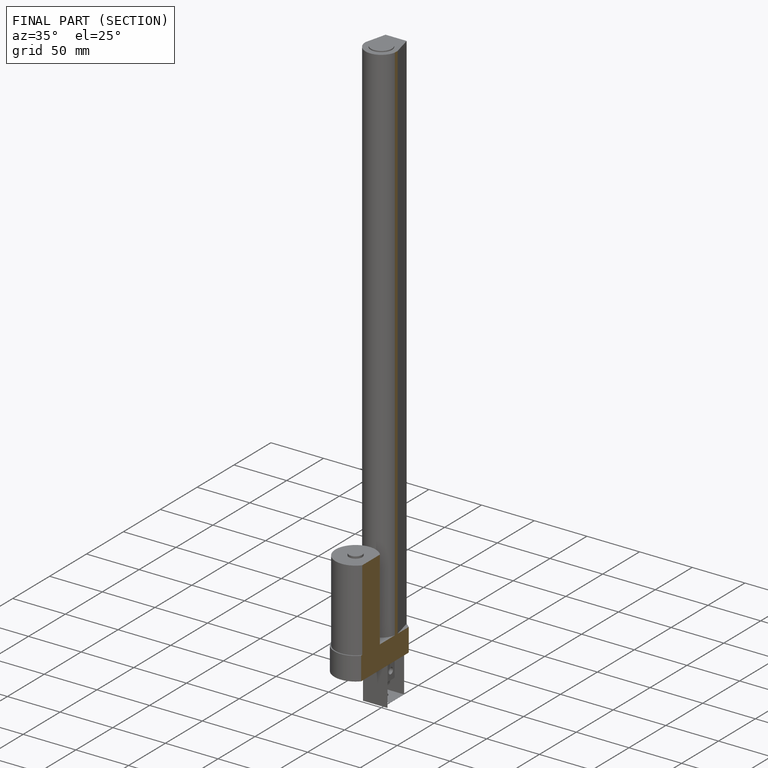
[diagram: finished part — half-section view (interior)]
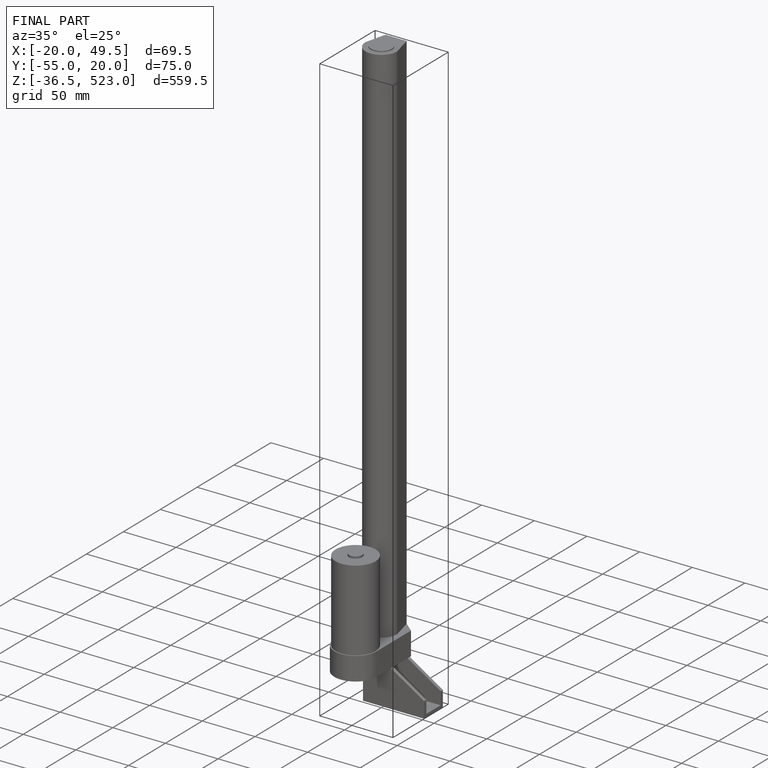
[diagram: finished part — iso view with bounding-box wireframe]
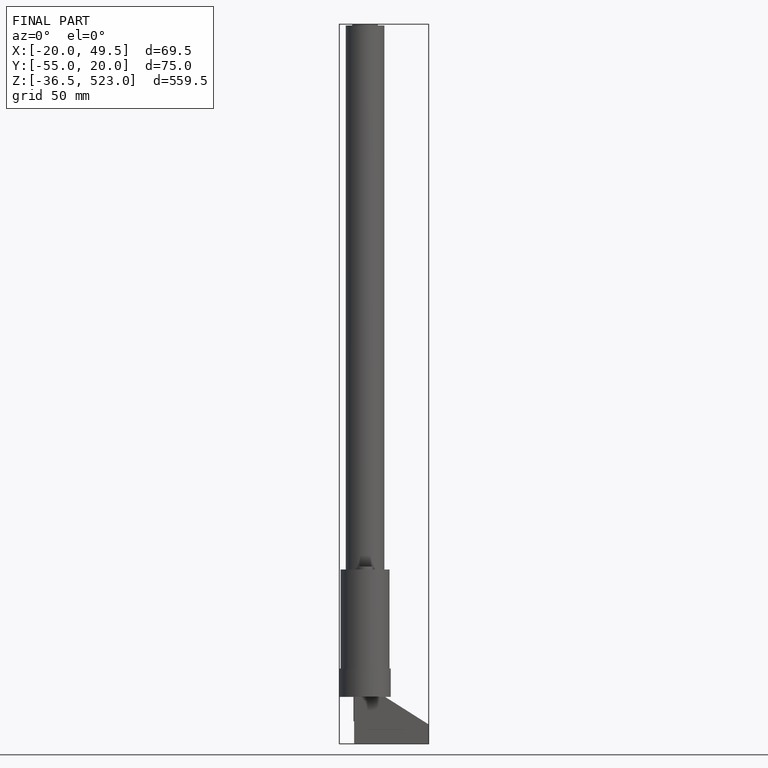
[diagram: finished part — front view with bounding-box wireframe]
